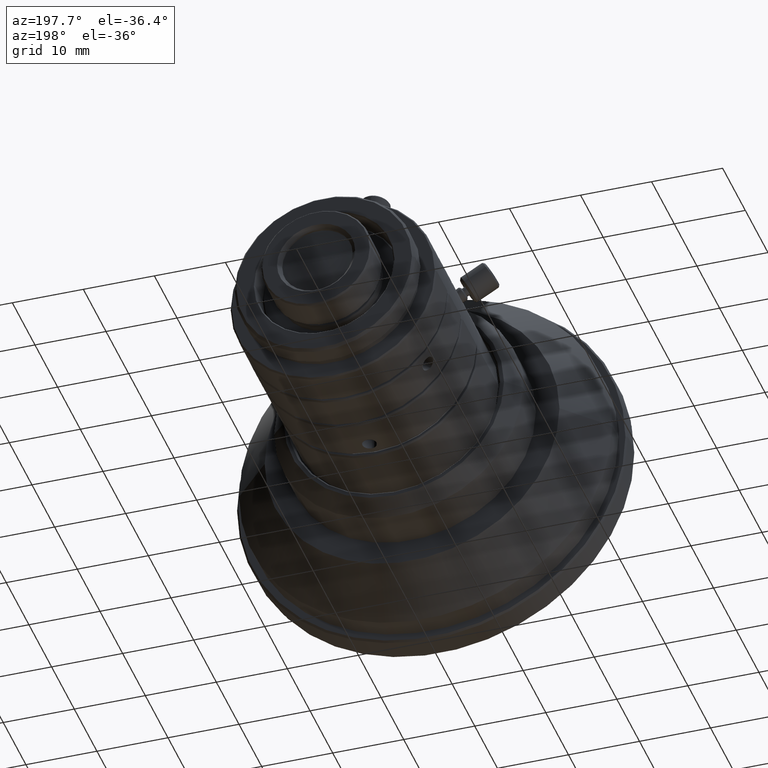
[diagram: clean part render]
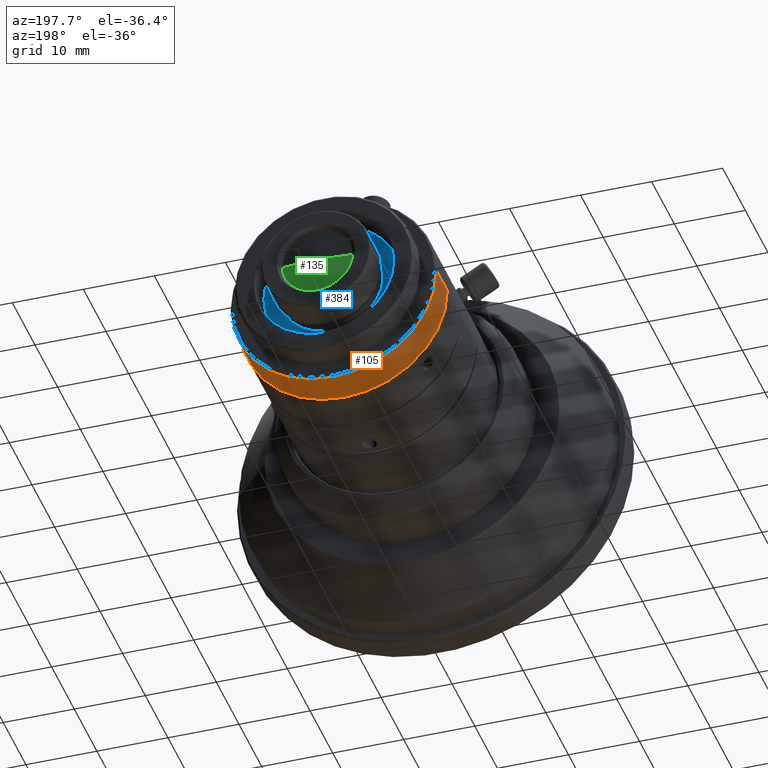
[diagram: same view with three faces highlighted in distinct colors, each labeled with its STEP entity id]
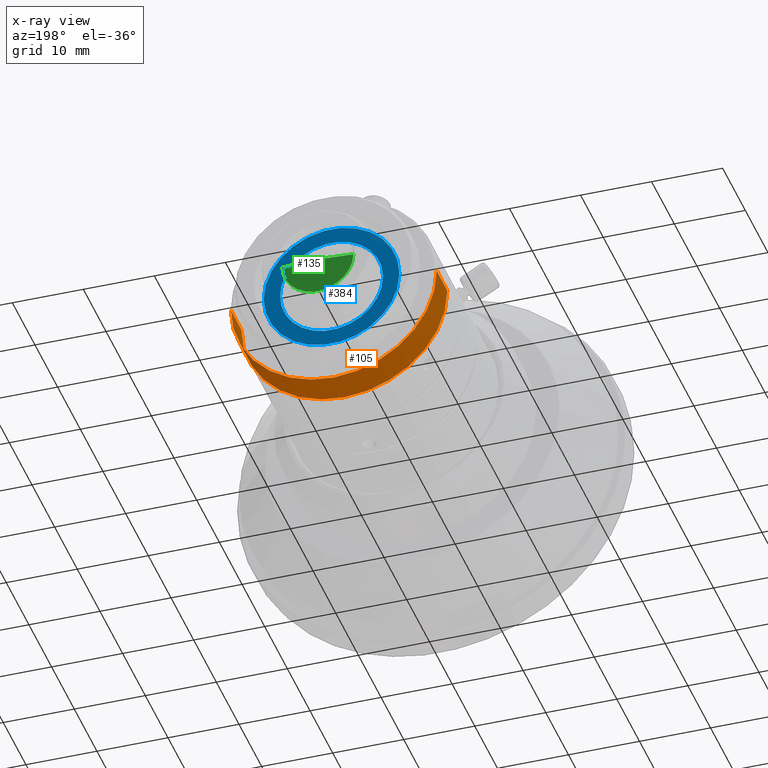
[diagram: x-ray of the same camera — body ghosted, the three highlighted faces saturated]
A machine part, auxiliary view with three faces highlighted in distinct colors.
The next image is the same camera in x-ray (body ghosted, the three faces saturated) — at least one of them is partly hidden behind the body in this view.
Their STEP definitions:

[orange] entity #105 — the highlighted cylindrical surface (partial cylindrical patch) has radius 14.5 mm, axis along (0, -1, 0).
#105=ADVANCED_FACE('0:12329',(#403),#404,.T.);
#403=FACE_OUTER_BOUND('',#1056,.T.);
#404=CYLINDRICAL_SURFACE('',#1057,0.0145);
#1056=EDGE_LOOP('',(#1745,#1746,#1747,#1748));
#1057=AXIS2_PLACEMENT_3D('',#1749,#1750,#1751);
#1745=ORIENTED_EDGE('',*,*,#3820,.F.);
#1746=ORIENTED_EDGE('',*,*,#3821,.F.);
#1747=ORIENTED_EDGE('',*,*,#3822,.F.);
#1748=ORIENTED_EDGE('',*,*,#3823,.T.);
#1749=CARTESIAN_POINT('',(-6.93889390390723E-17,0.0198747156701915,0.0));
#1750=DIRECTION('',(3.26943875618435E-15,-1.0,0.0));
#1751=DIRECTION('',(1.0,3.26943875618435E-15,0.0));
#3820=EDGE_CURVE('',#4509,#4494,#4510,.T.);
#3821=EDGE_CURVE('0:12437',#4511,#4509,#4512,.T.);
#3822=EDGE_CURVE('',#4498,#4511,#4513,.T.);
#3823=EDGE_CURVE('0:12440',#4498,#4494,#4514,.T.);
#4494=VERTEX_POINT('NONE',#5484);
#4498=VERTEX_POINT('',#5489);
#4509=VERTEX_POINT('NONE',#5503);
#4510=LINE('',#5504,#5505);
#4511=VERTEX_POINT('',#5506);
#4512=CIRCLE('',#5507,0.0145);
#4513=LINE('',#5508,#5509);
#4514=CIRCLE('',#5510,0.0145);
#5484=CARTESIAN_POINT('',(0.0144999999999999,0.0222247156701916,0.0));
#5489=CARTESIAN_POINT('',(-0.0145000000000001,0.0222247156701915,1.77573785876366E-18));
#5503=CARTESIAN_POINT('',(0.0144999999999999,0.0175247156701916,0.0));
#5504=CARTESIAN_POINT('',(0.0144999999999999,0.0198747156701916,-1.77573785876366E-18));
#5505=VECTOR('',#7493,1.0);
#5506=CARTESIAN_POINT('',(-0.0145000000000001,0.0175247156701915,1.77573785876366E-18));
#5507=AXIS2_PLACEMENT_3D('',#7494,#7495,#7496);
#5508=CARTESIAN_POINT('',(-0.0145000000000001,0.0198747156701915,1.77573785876366E-18));
#5509=VECTOR('',#7497,1.0);
#5510=AXIS2_PLACEMENT_3D('',#7498,#7499,#7500);
#7493=DIRECTION('',(-3.26943875618435E-15,1.0,-0.0));
#7494=CARTESIAN_POINT('',(-5.55111512312578E-17,0.0175247156701915,0.0));
#7495=DIRECTION('',(3.26943875618435E-15,-1.0,0.0));
#7496=DIRECTION('',(1.0,3.26943875618435E-15,0.0));
#7497=DIRECTION('',(3.26943875618435E-15,-1.0,0.0));
#7498=CARTESIAN_POINT('',(-7.63278329429795E-17,0.0222247156701915,0.0));
#7499=DIRECTION('',(3.26943875618435E-15,-1.0,0.0));
#7500=DIRECTION('',(1.0,3.26943875618435E-15,0.0));

[blue] entity #384 — the highlighted planar face has unit normal (-0, 1, 0).
#384=ADVANCED_FACE('0:10132',(#1022,#1023),#1024,.T.);
#1022=FACE_OUTER_BOUND('',#1675,.T.);
#1023=FACE_BOUND('',#1676,.T.);
#1024=PLANE('',#1677);
#1675=EDGE_LOOP('',(#3742,#3743));
#1676=EDGE_LOOP('',(#3744,#3745));
#1677=AXIS2_PLACEMENT_3D('',#3746,#3747,#3748);
#3742=ORIENTED_EDGE('',*,*,#4398,.F.);
#3743=ORIENTED_EDGE('',*,*,#3809,.F.);
#3744=ORIENTED_EDGE('',*,*,#4396,.T.);
#3745=ORIENTED_EDGE('',*,*,#3817,.T.);
#3746=CARTESIAN_POINT('',(0.00839999999999993,0.0231747156701916,0.0));
#3747=DIRECTION('',(-3.26943875618435E-15,1.0,0.0));
#3748=DIRECTION('',(-1.0,-3.26943875618435E-15,0.0));
#3809=EDGE_CURVE('0:10135',#4487,#4489,#4490,.T.);
#3817=EDGE_CURVE('0:10141',#4504,#4501,#4505,.T.);
#4396=EDGE_CURVE('0:10141',#4501,#4504,#5431,.T.);
#4398=EDGE_CURVE('0:10135',#4489,#4487,#5433,.T.);
#4487=VERTEX_POINT('',#5475);
#4489=VERTEX_POINT('NONE',#5478);
#4490=CIRCLE('',#5479,0.00955);
#4501=VERTEX_POINT('NONE',#5493);
#4504=VERTEX_POINT('',#5497);
#4505=CIRCLE('',#5498,0.00725);
#5431=CIRCLE('',#7417,0.00725);
#5433=CIRCLE('',#7419,0.00955);
#5475=CARTESIAN_POINT('',(0.00954999999999992,0.0231747156701916,1.16953769318572E-18));
#5478=CARTESIAN_POINT('',(-0.00955000000000007,0.0231747156701915,1.1817841611772E-18));
#5479=AXIS2_PLACEMENT_3D('',#7470,#7471,#7472);
#5493=CARTESIAN_POINT('',(0.00724999999999992,0.0231747156701916,0.0));
#5497=CARTESIAN_POINT('',(-0.00725000000000008,0.0231747156701915,8.87868929381831E-19));
#5498=AXIS2_PLACEMENT_3D('',#7486,#7487,#7488);
#7417=AXIS2_PLACEMENT_3D('',#8629,#8630,#8631);
#7419=AXIS2_PLACEMENT_3D('',#8635,#8636,#8637);
#7470=CARTESIAN_POINT('',(-7.63278329429795E-17,0.0231747156701915,0.0));
#7471=DIRECTION('',(3.26943875618435E-15,-1.0,0.0));
#7472=DIRECTION('',(1.0,3.26943875618435E-15,0.0));
#7486=CARTESIAN_POINT('',(-7.63278329429795E-17,0.0231747156701915,0.0));
#7487=DIRECTION('',(3.26943875618435E-15,-1.0,0.0));
#7488=DIRECTION('',(1.0,3.26943875618435E-15,0.0));
#8629=CARTESIAN_POINT('',(-7.63278329429795E-17,0.0231747156701915,0.0));
#8630=DIRECTION('',(3.26943875618435E-15,-1.0,0.0));
#8631=DIRECTION('',(1.0,3.26943875618435E-15,0.0));
#8635=CARTESIAN_POINT('',(-7.63278329429795E-17,0.0231747156701915,0.0));
#8636=DIRECTION('',(3.26943875618435E-15,-1.0,0.0));
#8637=DIRECTION('',(1.0,3.26943875618435E-15,0.0));

[green] entity #135 — the highlighted spherical surface has radius 46.997 mm.
#135=ADVANCED_FACE('0:10994',(#467),#468,.T.);
#467=FACE_OUTER_BOUND('',#1120,.T.);
#468=SPHERICAL_SURFACE('',#1121,0.046997);
#1120=EDGE_LOOP('',(#1971,#1972));
#1121=AXIS2_PLACEMENT_3D('',#1973,#1974,#1975);
#1971=ORIENTED_EDGE('',*,*,#3944,.F.);
#1972=ORIENTED_EDGE('',*,*,#3930,.T.);
#1973=CARTESIAN_POINT('',(-4.16333634234434E-17,-0.0175135843298085,0.0));
#1974=DIRECTION('',(-1.0,-3.26943875618435E-15,0.0));
#1975=DIRECTION('',(-3.26943875618435E-15,1.0,0.0));
#3930=EDGE_CURVE('0:79094',#4700,#4702,#4704,.T.);
#3944=EDGE_CURVE('',#4700,#4702,#4731,.T.);
#4700=VERTEX_POINT('',#5982);
#4702=VERTEX_POINT('',#5985);
#4704=CIRCLE('',#5988,0.005);
#4731=CIRCLE('',#6081,0.046997);
#5982=CARTESIAN_POINT('',(0.0049999999999999,0.0292166843298087,5.7228073937296E-18));
#5985=CARTESIAN_POINT('',(-0.00500000000000009,0.0292166843298087,6.12323399573676E-19));
#5988=AXIS2_PLACEMENT_3D('',#7675,#7676,#7677);
#6081=AXIS2_PLACEMENT_3D('',#7693,#7694,#7695);
#7675=CARTESIAN_POINT('',(-9.71445146547012E-17,0.0292166843298087,0.0));
#7676=DIRECTION('',(-3.26943875618435E-15,1.0,0.0));
#7677=DIRECTION('',(1.0,3.26943875618435E-15,0.0));
#7693=CARTESIAN_POINT('',(-4.16333634234434E-17,-0.0175135843298085,0.0));
#7694=DIRECTION('',(4.00390770776947E-31,-1.22464679914735E-16,1.0));
#7695=DIRECTION('',(-0.0,1.0,1.22464679914735E-16));